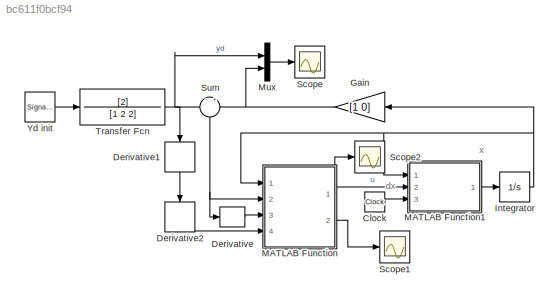
MODEL slx_bc611f0bcf94
KIND model
CONFIG AbsTol = auto
CONFIG EnableMultiTasking = on
CONFIG FixedStep = auto
CONFIG MaxStep = 0.001
CONFIG MinStep = auto
CONFIG RelTol = 1e-3
CONFIG SampleTimeConstraint = Unconstrained
CONFIG Solver = VariableStepAuto
CONFIG SolverName = VariableStepAuto
CONFIG StartTime = 0.0
CONFIG StopTime = 50
BLOCK [Clock] Clock
BLOCK [Derivative] Derivative
BLOCK [Derivative] Derivative1
BLOCK [Derivative] Derivative2
BLOCK [Gain] Gain
  Gain = [1 0]
  Multiplication = Matrix(K*u)
  OutDataTypeStr = Inherit: Inherit via internal rule
  ParamDataTypeStr = Inherit: Inherit via internal rule
  SaturateOnIntegerOverflow = off
BLOCK [Integrator] Integrator
  InitialCondition = randn(2,1)
  Ports = [1, 1]
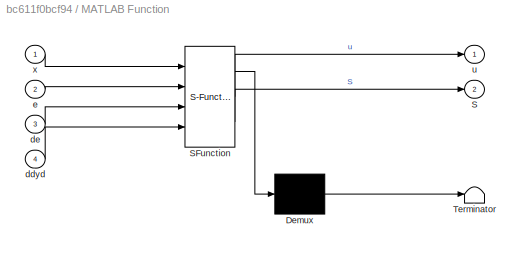
BLOCK [SubSystem] MATLAB Function
  ErrorFcn = Stateflow.Translate.translate
  PermitHierarchicalResolution = ExplicitOnly
  Ports = [4, 2]
  RequestExecContextInheritance = off
  SFBlockType = MATLAB Function
  TreatAsAtomicUnit = on
BLOCK [Demux] MATLAB Function/ Demux 
  Outputs = 1
  Ports = [1, 1]
BLOCK [S-Function] MATLAB Function/ SFunction 
  EnableBusSupport = on
  FunctionName = sf_sfun
  PortCounts = [4 3]
  Ports = [4, 3]
  SFcnIsStateOwnerBlock = off
  SFunctionDeploymentMode = off
  Tag = Stateflow S-Function SMC2 2
BLOCK [Terminator] MATLAB Function/ Terminator 
BLOCK [Outport] MATLAB Function/S
  IconDisplay = Port number
  Port = 2
BLOCK [Inport] MATLAB Function/ddyd
  IconDisplay = Port number
  Port = 4
BLOCK [Inport] MATLAB Function/de
  IconDisplay = Port number
  Port = 3
BLOCK [Inport] MATLAB Function/e
  IconDisplay = Port number
  Port = 2
BLOCK [Outport] MATLAB Function/u
  IconDisplay = Port number
BLOCK [Inport] MATLAB Function/x
  IconDisplay = Port number
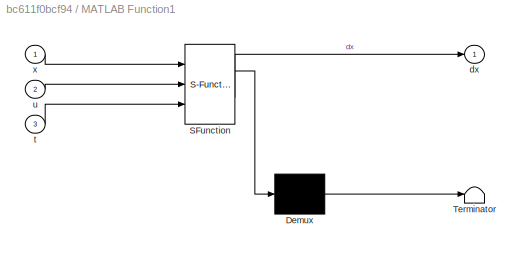
BLOCK [SubSystem] MATLAB Function1
  ErrorFcn = Stateflow.Translate.translate
  PermitHierarchicalResolution = ExplicitOnly
  Ports = [3, 1]
  RequestExecContextInheritance = off
  SFBlockType = MATLAB Function
  TreatAsAtomicUnit = on
BLOCK [Demux] MATLAB Function1/ Demux 
  Outputs = 1
  Ports = [1, 1]
BLOCK [S-Function] MATLAB Function1/ SFunction 
  EnableBusSupport = on
  FunctionName = sf_sfun
  PortCounts = [3 2]
  Ports = [3, 2]
  SFcnIsStateOwnerBlock = off
  SFunctionDeploymentMode = off
  Tag = Stateflow S-Function SMC2 1
BLOCK [Terminator] MATLAB Function1/ Terminator 
BLOCK [Outport] MATLAB Function1/dx
  IconDisplay = Port number
BLOCK [Inport] MATLAB Function1/t
  IconDisplay = Port number
  Port = 3
BLOCK [Inport] MATLAB Function1/u
  IconDisplay = Port number
  Port = 2
BLOCK [Inport] MATLAB Function1/x
  IconDisplay = Port number
BLOCK [Mux] Mux
  DisplayOption = bar
  Inputs = 2
  Ports = [2, 1]
BLOCK [Scope] Scope
  Floating = off
  NumInputPorts = 1
  Ports = [1]
  ScopeSpecificationString = Simulink.scopes.TimeScopeBlockCfg('CurrentConfiguration', extmgr.ConfigurationSet(extmgr.Configuration('Core','General UI',true),extmgr.Configuration('Core','Source UI',true),extmgr.Configuration('Sources','WiredSimulink',true),extmgr.Configuration('Visuals','Time Domain',true,'SerializedDisplays',{struct('MinYLimReal','-1.36637','MaxYLimReal','1.36172','YLabelReal','','MinYLimMag','0.00000','MaxY...<+1400ch>
BLOCK [Scope] Scope1
  Floating = off
  NumInputPorts = 1
  Ports = [1]
  ScopeSpecificationString = Simulink.scopes.TimeScopeBlockCfg('CurrentConfiguration', extmgr.ConfigurationSet(extmgr.Configuration('Core','General UI',true),extmgr.Configuration('Core','Source UI',true),extmgr.Configuration('Sources','WiredSimulink',true,'DataLoggingVariableName','ScopeData1'),extmgr.Configuration('Visuals','Time Domain',true,'SerializedDisplays',{struct('MinYLimReal','-0.21647','MaxYLimReal','0.13681','YLab...<+1447ch>
BLOCK [Scope] Scope2
  Floating = off
  NumInputPorts = 1
  Ports = [1]
  ScopeSpecificationString = Simulink.scopes.TimeScopeBlockCfg('CurrentConfiguration', extmgr.ConfigurationSet(extmgr.Configuration('Core','General UI',true),extmgr.Configuration('Core','Source UI',true),extmgr.Configuration('Sources','WiredSimulink',true,'DataLoggingVariableName','ScopeData2'),extmgr.Configuration('Visuals','Time Domain',true,'SerializedDisplays',{struct('MinYLimReal','-30.46967','MaxYLimReal','11.34126','YL...<+1437ch>
BLOCK [Sum] Sum
  IconShape = round
  InputSameDT = off
  Inputs = -|+
  OutDataTypeStr = Inherit: Inherit via internal rule
  Ports = [2, 1]
  SaturateOnIntegerOverflow = off
BLOCK [TransferFcn] Transfer Fcn
  Denominator = [1  2 2]
  Numerator = [2]
BLOCK [SignalGenerator] Yd init 
  Frequency = 0.05
  Ports = [0, 1]
  WaveForm = square
ANNOTATION (root): dx
ANNOTATION (root): x
LINE Clock:1 -> MATLAB Function1:3
LINE Derivative1:1 -> Derivative2:1
LINE Derivative2:1 -> MATLAB Function:4
LINE Derivative:1 -> MATLAB Function:3
NET Gain:1 -> Mux:2, Sum:2
NET Integrator:1 -> Gain:1, MATLAB Function1:1, MATLAB Function:1
LINE MATLAB Function1:1 -> Integrator:1
NET MATLAB Function:1 -> MATLAB Function1:2, Scope2:1
LINE MATLAB Function:2 -> Scope1:1
LINE Mux:1 -> Scope:1
NET Sum:1 -> Derivative:1, MATLAB Function:2
NET Transfer Fcn:1 -> Derivative1:1, Mux:1, Sum:1
LINE Yd init :1 -> Transfer Fcn:1
note: NET lines group one-source signal fan-out (src -> all destinations, sorted); 1:1 wires keep LINE
CHART MATLAB Function1 states=1 transitions=1
  STATE_LABEL 'eML_blk_kernel()'
  STATE_LABEL 'SCRIPT:\nfunction dx = fcn(x , u , t)\n%#codegen\ndx = zeros(2,1) ;\ndx(1) = x(2) ; \ndx(2) = x(1) * exp(-x(2)^2) + (1.5 + sin(t))*u ;'
CHART MATLAB Function states=1 transitions=1
  STATE_LABEL 'eML_blk_kernel()'
  STATE_LABEL 'SCRIPT:\nfunction [u , S] = fcn(x, e, de, ddyd)\nk = 4;\neta = 4;\nEPS = 0.01;\nS = de  + k * e;\nF = (abs(x(1)) + k * abs(x(2)) + abs(ddyd))/0.5;\n% u = -(F + eta) * sign(S);\n% u = -(F + eta) * S/(abs(S)  + EPS);\nu = -(F + eta) * SAT(S);\nend\n\n% To avoid chattering\nfunction  Z = SAT(S)\ndelta = 0.1;\nif S > delta\n    Z = 1;\nelseif S < -delta\n    Z = -1;\nelse\n    Z = 1/delta * S;\nend\nend\n'
